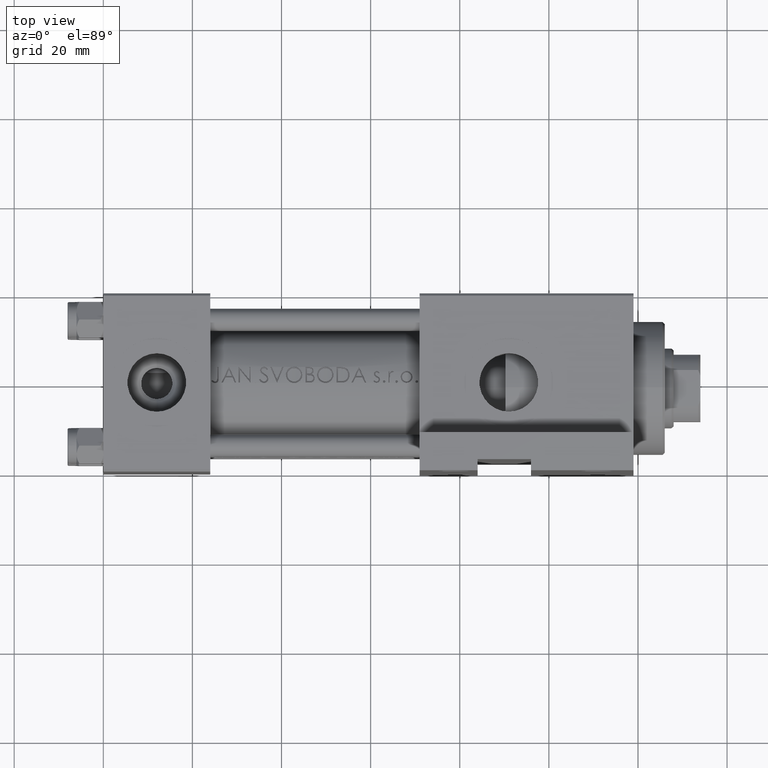
[diagram: clean part render]
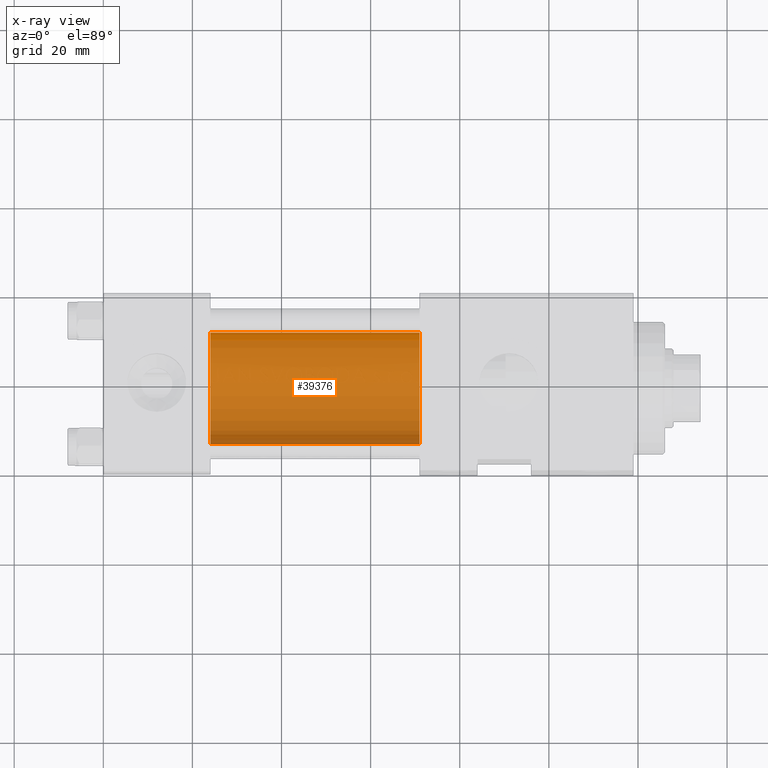
[diagram: x-ray — body ghosted, one internal face saturated and labeled with its STEP entity id]
A machine part, top view, then the same camera in x-ray: the body is ghosted and one INTERNAL B-rep face — a face not visible from any outside direction — is saturated and labeled: STEP entity #39376.
In plain terms, the highlighted cylindrical surface (partial cylindrical patch) has radius 12.5 mm, axis along (-1, -0, 0).
Its self-contained STEP definition (entity closure, byte-faithful):
#133 = VERTEX_POINT ( 'NONE', #39391 ) ;
#214 = DIRECTION ( 'NONE',  ( 1.000000000000000000, 0.000000000000000000, 0.000000000000000000 ) ) ;
#969 = CARTESIAN_POINT ( 'NONE',  ( 71.00000000000001421, 0.000000000000000000, -1.000000000000007772 ) ) ;
#1455 = EDGE_CURVE ( 'NONE', #39659, #31159, #19863, .T. ) ;
#1577 = AXIS2_PLACEMENT_3D ( 'NONE', #33525, #29532, #21558 ) ;
#1782 = ORIENTED_EDGE ( 'NONE', *, *, #37501, .F. ) ;
#4063 = LINE ( 'NONE', #34711, #7243 ) ;
#6365 = CYLINDRICAL_SURFACE ( 'NONE', #1577, 12.49999999999999645 ) ;
#7243 = VECTOR ( 'NONE', #23237, 1000.000000000000000 ) ;
#10041 = CARTESIAN_POINT ( 'NONE',  ( 71.00000000000001421, 1.530808498934191127E-15, -13.50000000000000533 ) ) ;
#13892 = DIRECTION ( 'NONE',  ( -1.000000000000000000, -0.000000000000000000, -0.000000000000000000 ) ) ;
#14336 = FACE_OUTER_BOUND ( 'NONE', #40203, .T. ) ;
#19057 = AXIS2_PLACEMENT_3D ( 'NONE', #969, #24603, #28091 ) ;
#19189 = EDGE_CURVE ( 'NONE', #133, #45993, #22856, .T. ) ;
#19863 = CIRCLE ( 'NONE', #19057, 12.49999999999999645 ) ;
#21558 = DIRECTION ( 'NONE',  ( 0.000000000000000000, 0.000000000000000000, 1.000000000000000000 ) ) ;
#22856 = CIRCLE ( 'NONE', #23642, 12.49999999999999645 ) ;
#23237 = DIRECTION ( 'NONE',  ( -1.000000000000000000, -0.000000000000000000, -0.000000000000000000 ) ) ;
#23642 = AXIS2_PLACEMENT_3D ( 'NONE', #34359, #214, #25872 ) ;
#24603 = DIRECTION ( 'NONE',  ( 1.000000000000000000, 0.000000000000000000, 0.000000000000000000 ) ) ;
#25872 = DIRECTION ( 'NONE',  ( 0.000000000000000000, 0.000000000000000000, -1.000000000000000000 ) ) ;
#28091 = DIRECTION ( 'NONE',  ( 0.000000000000000000, 0.000000000000000000, -1.000000000000000000 ) ) ;
#29532 = DIRECTION ( 'NONE',  ( -1.000000000000000000, -0.000000000000000000, -0.000000000000000000 ) ) ;
#31159 = VERTEX_POINT ( 'NONE', #45843 ) ;
#32830 = CARTESIAN_POINT ( 'NONE',  ( 71.00000000000001421, 1.530808498934191127E-15, -13.50000000000000533 ) ) ;
#33003 = ORIENTED_EDGE ( 'NONE', *, *, #19189, .F. ) ;
#33525 = CARTESIAN_POINT ( 'NONE',  ( 71.00000000000001421, 0.000000000000000000, -1.000000000000007772 ) ) ;
#34359 = CARTESIAN_POINT ( 'NONE',  ( 24.00000000000000000, 0.000000000000000000, -1.000000000000007772 ) ) ;
#34711 = CARTESIAN_POINT ( 'NONE',  ( 71.00000000000001421, 0.000000000000000000, 11.49999999999998934 ) ) ;
#37501 = EDGE_CURVE ( 'NONE', #39659, #133, #40580, .T. ) ;
#39376 = ADVANCED_FACE ( 'NONE', ( #14336 ), #6365, .F. ) ;
#39391 = CARTESIAN_POINT ( 'NONE',  ( 24.00000000000000000, 1.530808498934191127E-15, -13.50000000000000533 ) ) ;
#39659 = VERTEX_POINT ( 'NONE', #10041 ) ;
#40203 = EDGE_LOOP ( 'NONE', ( #1782, #43412, #45699, #33003 ) ) ;
#40580 = LINE ( 'NONE', #32830, #45328 ) ;
#41947 = EDGE_CURVE ( 'NONE', #31159, #45993, #4063, .T. ) ;
#43412 = ORIENTED_EDGE ( 'NONE', *, *, #1455, .T. ) ;
#45328 = VECTOR ( 'NONE', #13892, 1000.000000000000000 ) ;
#45699 = ORIENTED_EDGE ( 'NONE', *, *, #41947, .T. ) ;
#45843 = CARTESIAN_POINT ( 'NONE',  ( 71.00000000000001421, 0.000000000000000000, 11.49999999999998934 ) ) ;
#45993 = VERTEX_POINT ( 'NONE', #46599 ) ;
#46599 = CARTESIAN_POINT ( 'NONE',  ( 24.00000000000000000, 0.000000000000000000, 11.49999999999998934 ) ) ;